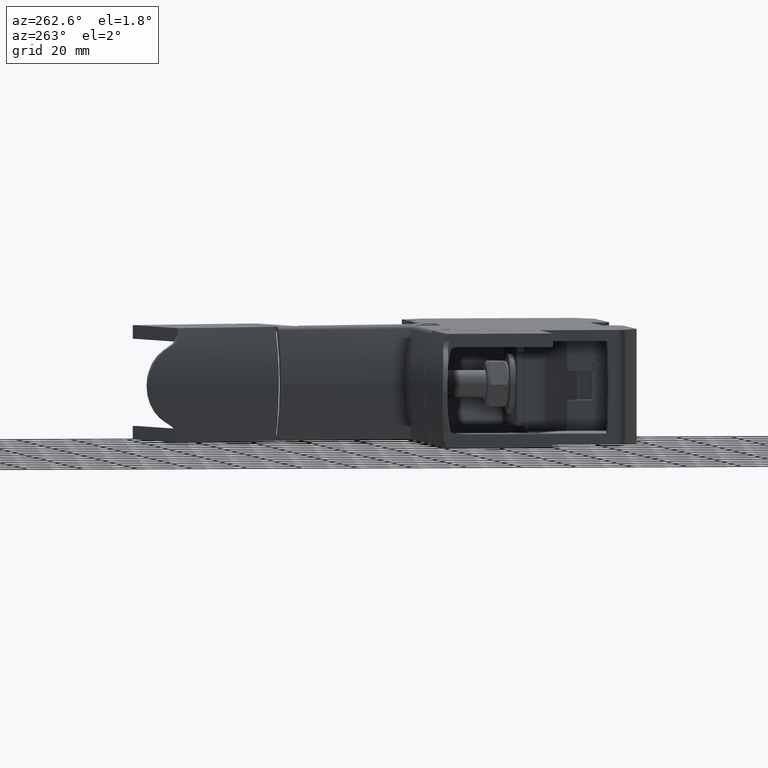
[diagram: clean part render]
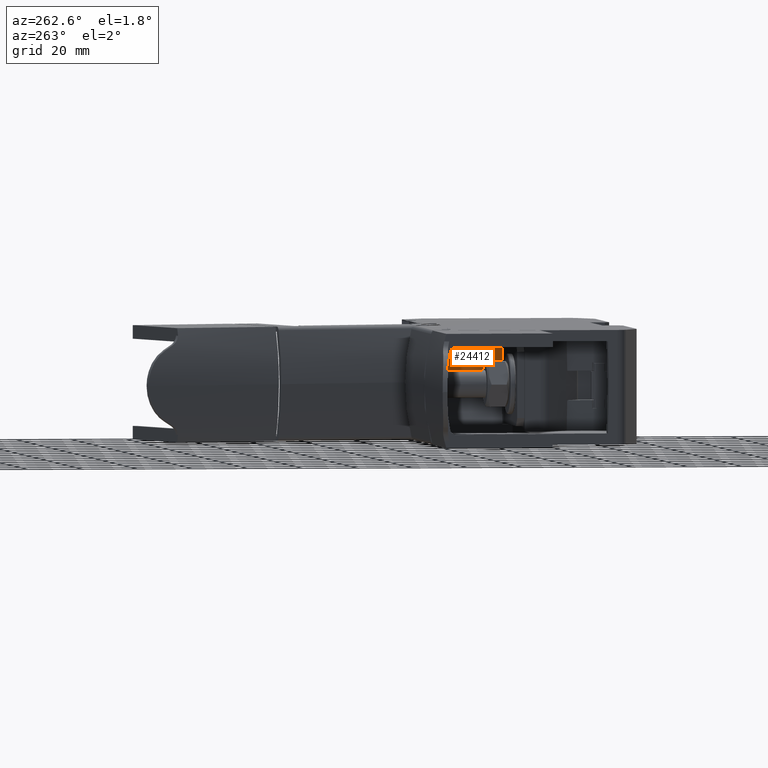
[diagram: same view with one face highlighted and labeled with its STEP entity id]
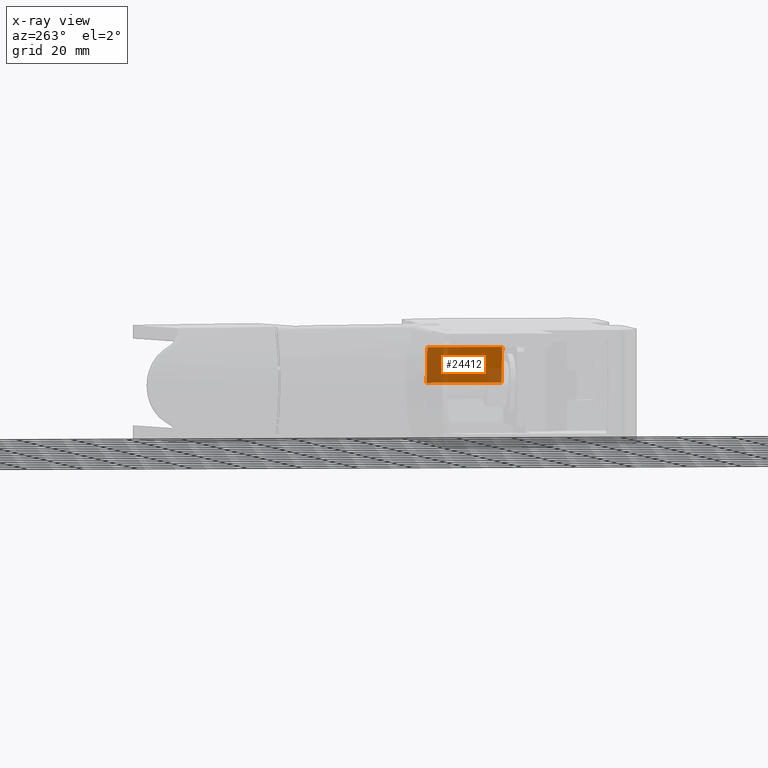
[diagram: x-ray of the same camera — body ghosted, the highlighted face saturated]
A machine part, auxiliary view. The second image highlights one B-rep face of the part: STEP entity #24412.
The next image is the same camera in x-ray: the body ghosted, the highlighted face saturated — about 37% of this face is hidden behind the body in this view.
In plain terms, the highlighted cylindrical surface (partial cylindrical patch) has radius 46 mm, axis along (-0, 1, 0).
Its self-contained STEP definition (entity closure, byte-faithful):
#3295 = CARTESIAN_POINT ( 'NONE',  ( -8.923261213694800600, 262.6983615179383400, 13.37996959994805800 ) ) ;
#3334 = CARTESIAN_POINT ( 'NONE',  ( -8.922998607174193400, 262.7029111901943000, 13.37996694754546700 ) ) ;
#3922 = CARTESIAN_POINT ( 'NONE',  ( -8.923403863886015600, 290.0006393028695000, 13.57996647868470500 ) ) ;
#3952 = CARTESIAN_POINT ( 'NONE',  ( -10.77588013094527500, 262.6983615179378800, 26.30315587634513000 ) ) ;
#3959 = CARTESIAN_POINT ( 'NONE',  ( -8.923036162437119500, 290.0025164976247000, 13.37996601451023800 ) ) ;
#4030 = CARTESIAN_POINT ( 'NONE',  ( -10.77588013094527500, 289.9983646488880700, 26.30315587634605400 ) ) ;
#7319 = ORIENTED_EDGE ( 'NONE', *, *, #22463, .F. ) ;
#7357 = ORIENTED_EDGE ( 'NONE', *, *, #22572, .T. ) ;
#7359 = ORIENTED_EDGE ( 'NONE', *, *, #22560, .T. ) ;
#7363 = ORIENTED_EDGE ( 'NONE', *, *, #22522, .T. ) ;
#7386 = AXIS2_PLACEMENT_3D ( 'NONE', #27980, #27982, #27983 ) ;
#8878 = VECTOR ( 'NONE', #15273, 1000.000000000000000 ) ;
#10406 = EDGE_LOOP ( 'NONE', ( #7357, #16132, #7359, #7319, #7363, #16122 ) ) ;
#14452 = CARTESIAN_POINT ( 'NONE',  ( -8.922998607174193400, 262.7029111901943000, 13.37996694754546700 ) ) ;
#14482 = CARTESIAN_POINT ( 'NONE',  ( -8.923261213694800600, 262.7013946327755900, 13.37996959994803900 ) ) ;
#14488 = CARTESIAN_POINT ( 'NONE',  ( -8.923261213694800600, 262.6998780753569900, 13.37996959994803900 ) ) ;
#14491 = CARTESIAN_POINT ( 'NONE',  ( -8.923261213694800600, 262.6983615179383400, 13.37996959994805800 ) ) ;
#14934 = CARTESIAN_POINT ( 'NONE',  ( -8.923403863886015600, 290.0006393028695000, 13.57996647868470500 ) ) ;
#14945 = CARTESIAN_POINT ( 'NONE',  ( -8.923406134933925300, 290.0029143211444300, 13.44663255297070300 ) ) ;
#14946 = CARTESIAN_POINT ( 'NONE',  ( -8.923551056172945200, 290.0029143211444300, 13.51329866763042600 ) ) ;
#14970 = CARTESIAN_POINT ( 'NONE',  ( -8.923036162437119500, 290.0025164976247000, 13.37996601451023800 ) ) ;
#15024 = CARTESIAN_POINT ( 'NONE',  ( -8.923036162437119500, 290.0025164976247000, 13.37996601451023800 ) ) ;
#15034 = CARTESIAN_POINT ( 'NONE',  ( -8.923261213694869900, 271.8026925591280500, 13.37996714052168000 ) ) ;
#15041 = CARTESIAN_POINT ( 'NONE',  ( -8.922998607174193400, 262.7029111901943000, 13.37996694754546700 ) ) ;
#15051 = CARTESIAN_POINT ( 'NONE',  ( -8.923261213694869900, 280.9024739280619100, 13.37996714052198900 ) ) ;
#15111 = CARTESIAN_POINT ( 'NONE',  ( -10.77588013094527500, 289.9983646488880700, 26.30315587634605400 ) ) ;
#15113 = CARTESIAN_POINT ( 'NONE',  ( -9.567887603028596600, 289.9991231495523000, 22.17648731841880400 ) ) ;
#15126 = CARTESIAN_POINT ( 'NONE',  ( -8.923403863886015600, 290.0006393028695000, 13.57996647868470500 ) ) ;
#15127 = CARTESIAN_POINT ( 'NONE',  ( -8.923261213694861000, 262.6983615179381700, 17.74647665092407700 ) ) ;
#15131 = CARTESIAN_POINT ( 'NONE',  ( -9.549158739706767200, 262.6983615179380500, 22.11250694634620800 ) ) ;
#15139 = CARTESIAN_POINT ( 'NONE',  ( -8.923261213694800600, 262.6983615179383400, 13.37996959994805800 ) ) ;
#15159 = CARTESIAN_POINT ( 'NONE',  ( -10.77588013094527500, 262.6983615179378800, 26.30315587634513000 ) ) ;
#15170 = CARTESIAN_POINT ( 'NONE',  ( -8.942390491343832800, 289.9998816502164200, 17.87976592299848400 ) ) ;
#15273 = DIRECTION ( 'NONE',  ( 3.135722098253520100E-028, -1.000000000000000000, -3.381896538890620300E-014 ) ) ;
#15295 = CARTESIAN_POINT ( 'NONE',  ( -10.77588013094525200, 229.4601388420636000, 26.30315587634401100 ) ) ;
#15317 = LINE ( 'NONE', #15295, #8878 ) ;
#16122 = ORIENTED_EDGE ( 'NONE', *, *, #22262, .F. ) ;
#16132 = ORIENTED_EDGE ( 'NONE', *, *, #22664, .F. ) ;
#19167 = B_SPLINE_CURVE_WITH_KNOTS ( 'NONE', 3,
 ( #15111, #15113, #15170, #15126 ),
 .UNSPECIFIED., .F., .F.,
 ( 4, 4 ),
 ( 0.0000000000000000000, 1.000000000000000000 ),
 .UNSPECIFIED. ) ;
#19169 = B_SPLINE_CURVE_WITH_KNOTS ( 'NONE', 3,
 ( #15139, #15127, #15131, #15159 ),
 .UNSPECIFIED., .F., .F.,
 ( 4, 4 ),
 ( 0.0000000000000000000, 1.000000000000000000 ),
 .UNSPECIFIED. ) ;
#19177 = B_SPLINE_CURVE_WITH_KNOTS ( 'NONE', 3,
 ( #14970, #14945, #14946, #14934 ),
 .UNSPECIFIED., .F., .F.,
 ( 4, 4 ),
 ( 0.0000000000000000000, 1.000000000000000000 ),
 .UNSPECIFIED. ) ;
#19187 = B_SPLINE_CURVE_WITH_KNOTS ( 'NONE', 3,
 ( #14491, #14488, #14482, #14452 ),
 .UNSPECIFIED., .F., .F.,
 ( 4, 4 ),
 ( 0.0000000000000000000, 1.000000000000000000 ),
 .UNSPECIFIED. ) ;
#19193 = B_SPLINE_CURVE_WITH_KNOTS ( 'NONE', 3,
 ( #15024, #15051, #15034, #15041 ),
 .UNSPECIFIED., .F., .F.,
 ( 4, 4 ),
 ( 0.0000000000000000000, 1.000000000000000000 ),
 .UNSPECIFIED. ) ;
#22262 = EDGE_CURVE ( 'NONE', #37119, #37160, #19187, .T. ) ;
#22463 = EDGE_CURVE ( 'NONE', #37628, #37556, #19177, .T. ) ;
#22522 = EDGE_CURVE ( 'NONE', #37628, #37160, #19193, .T. ) ;
#22560 = EDGE_CURVE ( 'NONE', #37684, #37556, #19167, .T. ) ;
#22572 = EDGE_CURVE ( 'NONE', #37119, #37618, #19169, .T. ) ;
#22664 = EDGE_CURVE ( 'NONE', #37684, #37618, #15317, .T. ) ;
#24412 = ADVANCED_FACE ( 'NONE', ( #27940 ), #27933, .F. ) ;
#27933 = CYLINDRICAL_SURFACE ( 'NONE', #7386, 45.99999999999449300 ) ;
#27940 = FACE_OUTER_BOUND ( 'NONE', #10406, .T. ) ;
#27980 = CARTESIAN_POINT ( 'NONE',  ( -54.92326121368929400, 229.4601388420635100, 13.37996959994630200 ) ) ;
#27982 = DIRECTION ( 'NONE',  ( -3.135722098253520100E-028, 1.000000000000000000, 3.381896538890620300E-014 ) ) ;
#27983 = DIRECTION ( 'NONE',  ( 0.0000000000000000000, -3.378939640163924200E-014, 1.000000000000000000 ) ) ;
#37119 = VERTEX_POINT ( 'NONE', #3295 ) ;
#37160 = VERTEX_POINT ( 'NONE', #3334 ) ;
#37556 = VERTEX_POINT ( 'NONE', #3922 ) ;
#37618 = VERTEX_POINT ( 'NONE', #3952 ) ;
#37628 = VERTEX_POINT ( 'NONE', #3959 ) ;
#37684 = VERTEX_POINT ( 'NONE', #4030 ) ;